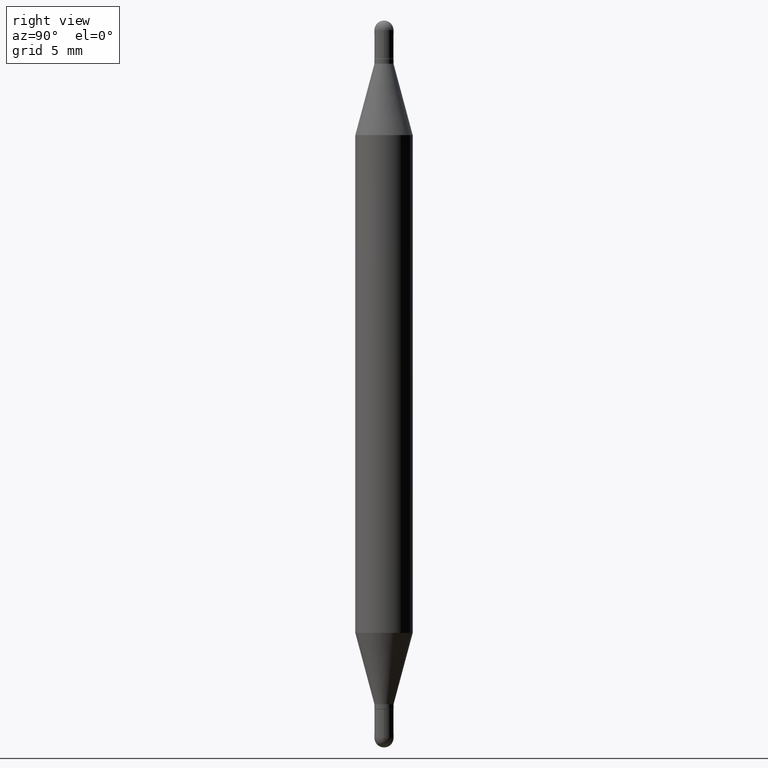
[diagram: clean part render]
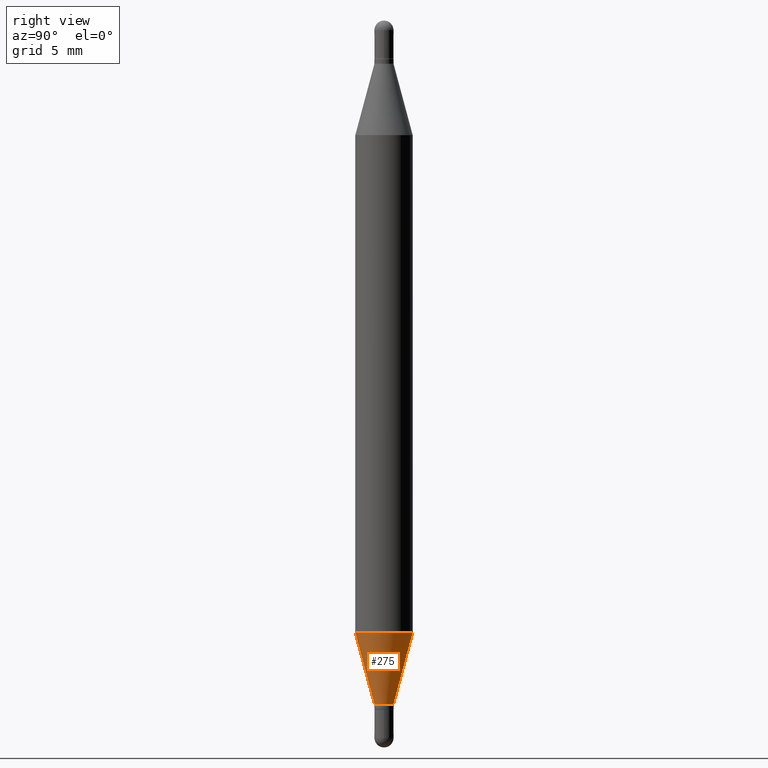
[diagram: same view with one face highlighted and labeled with its STEP entity id]
A machine part, right view. The second image highlights one B-rep face of the part: STEP entity #275.
In plain terms, the highlighted conical surface has half-angle 15 deg.
Its self-contained STEP definition (entity closure, byte-faithful):
#24 = DIRECTION ( 'NONE',  ( -6.982962677686265922E-15, -1.000000000000000000, 4.626330217890369336E-15 ) ) ;
#32 = EDGE_LOOP ( 'NONE', ( #224, #400, #700, #898 ) ) ;
#50 = EDGE_CURVE ( 'NONE', #54, #916, #518, .T. ) ;
#54 = VERTEX_POINT ( 'NONE', #279 ) ;
#67 = CARTESIAN_POINT ( 'NONE',  ( -1.375643647503831486E-16, -0.01970000000000464435, -1.407099999999999795 ) ) ;
#149 = VECTOR ( 'NONE', #915, 39.37007874015748143 ) ;
#187 = CARTESIAN_POINT ( 'NONE',  ( 3.090770025373766700E-29, -4.387396575570313386E-15, -1.260243800722164131 ) ) ;
#195 = EDGE_CURVE ( 'NONE', #408, #54, #458, .T. ) ;
#210 = AXIS2_PLACEMENT_3D ( 'NONE', #544, #950, #839 ) ;
#224 = ORIENTED_EDGE ( 'NONE', *, *, #569, .T. ) ;
#275 = ADVANCED_FACE ( 'NONE', ( #375 ), #667, .T. ) ;
#279 = CARTESIAN_POINT ( 'NONE',  ( -4.123439461173431192E-16, -0.05905000000000439758, -1.260243800722163909 ) ) ;
#342 = CARTESIAN_POINT ( 'NONE',  ( 4.051124067684273079E-16, 0.05904999999999561988, -1.260243800722164353 ) ) ;
#375 = FACE_OUTER_BOUND ( 'NONE', #32, .T. ) ;
#400 = ORIENTED_EDGE ( 'NONE', *, *, #1006, .T. ) ;
#404 = CARTESIAN_POINT ( 'NONE',  ( 1.399769189447726628E-16, 0.01969999999999484663, -1.407099999999999795 ) ) ;
#408 = VERTEX_POINT ( 'NONE', #955 ) ;
#458 = LINE ( 'NONE', #67, #149 ) ;
#518 = CIRCLE ( 'NONE', #867, 0.05905000000000000526 ) ;
#544 = CARTESIAN_POINT ( 'NONE',  ( 3.450937429893551947E-29, -4.898659860851804742E-15, -1.407099999999999795 ) ) ;
#569 = EDGE_CURVE ( 'NONE', #408, #888, #847, .T. ) ;
#578 = DIRECTION ( 'NONE',  ( -6.982962677686265922E-15, -1.000000000000000000, 0.000000000000000000 ) ) ;
#589 = DIRECTION ( 'NONE',  ( -2.452517539544845457E-29, 3.481387151483054632E-15, 1.000000000000000000 ) ) ;
#605 = AXIS2_PLACEMENT_3D ( 'NONE', #1099, #589, #578 ) ;
#667 = CONICAL_SURFACE ( 'NONE', #210, 0.01969999999999974549, 0.2617993877991502960 ) ;
#700 = ORIENTED_EDGE ( 'NONE', *, *, #50, .F. ) ;
#793 = DIRECTION ( 'NONE',  ( -2.452517539544845457E-29, 3.481387151483054632E-15, 1.000000000000000000 ) ) ;
#839 = DIRECTION ( 'NONE',  ( -6.982962677686265922E-15, -1.000000000000000000, 0.000000000000000000 ) ) ;
#847 = CIRCLE ( 'NONE', #605, 0.01969999999999974549 ) ;
#867 = AXIS2_PLACEMENT_3D ( 'NONE', #187, #793, #24 ) ;
#888 = VERTEX_POINT ( 'NONE', #404 ) ;
#898 = ORIENTED_EDGE ( 'NONE', *, *, #195, .F. ) ;
#915 = DIRECTION ( 'NONE',  ( -1.807323732225330534E-15, -0.2588190451025182415, 0.9659258262890689783 ) ) ;
#916 = VERTEX_POINT ( 'NONE', #342 ) ;
#928 = VECTOR ( 'NONE', #1000, 39.37007874015748143 ) ;
#950 = DIRECTION ( 'NONE',  ( -2.452517539544845457E-29, 3.481387151483054632E-15, 1.000000000000000000 ) ) ;
#955 = CARTESIAN_POINT ( 'NONE',  ( -1.375643647503831486E-16, -0.01970000000000464435, -1.407099999999999795 ) ) ;
#1000 = DIRECTION ( 'NONE',  ( 1.839019923739600710E-15, 0.2588190451025250138, 0.9659258262890670910 ) ) ;
#1006 = EDGE_CURVE ( 'NONE', #888, #916, #1074, .T. ) ;
#1007 = CARTESIAN_POINT ( 'NONE',  ( 1.399769189447724162E-16, 0.01969999999999484663, -1.407099999999999795 ) ) ;
#1074 = LINE ( 'NONE', #1007, #928 ) ;
#1099 = CARTESIAN_POINT ( 'NONE',  ( 3.450937429893551947E-29, -4.898659860851804742E-15, -1.407099999999999795 ) ) ;